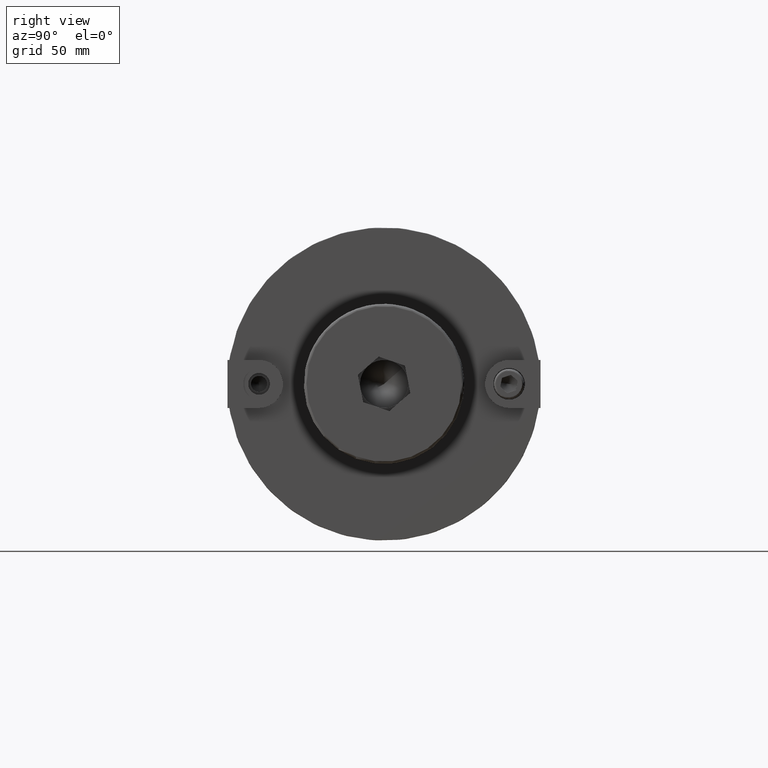
[diagram: clean part render]
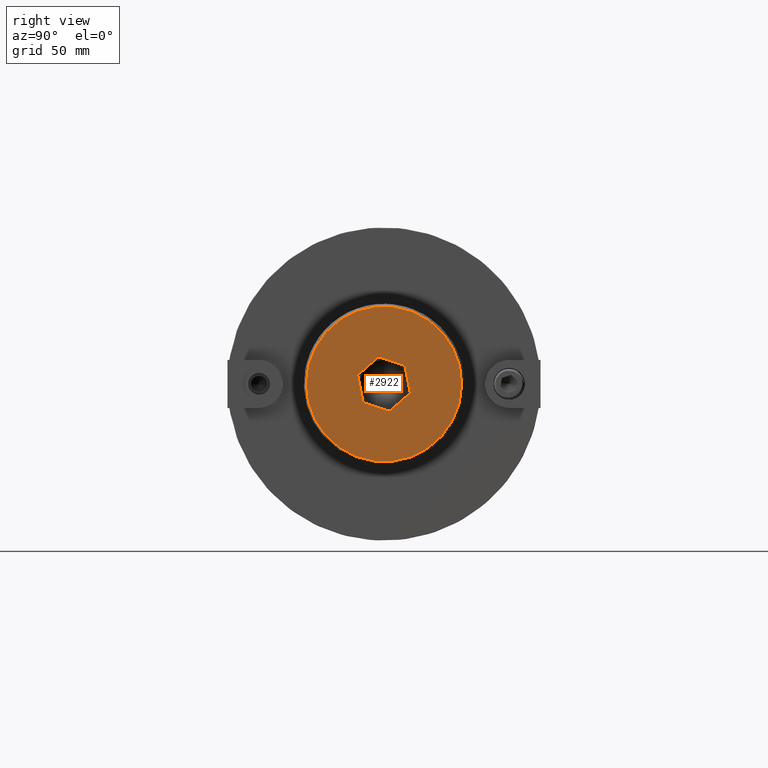
[diagram: same view with one face highlighted and labeled with its STEP entity id]
A machine part, right view. The second image highlights one B-rep face of the part: STEP entity #2922.
In plain terms, the highlighted planar face has unit normal (1, 0, 0).
Its self-contained STEP definition (entity closure, byte-faithful):
#641=FACE_BOUND('',#1098,.T.);
#784=CIRCLE('',#3388,30.75);
#927=FACE_OUTER_BOUND('',#1097,.T.);
#1097=EDGE_LOOP('',(#2705));
#1098=EDGE_LOOP('',(#2706,#2707,#2708,#2709,#2710,#2711));
#1244=LINE('',#5723,#1403);
#1247=LINE('',#5728,#1406);
#1249=LINE('',#5732,#1408);
#1251=LINE('',#5736,#1410);
#1253=LINE('',#5740,#1412);
#1255=LINE('',#5743,#1414);
#1403=VECTOR('',#4120,10.);
#1406=VECTOR('',#4125,10.);
#1408=VECTOR('',#4129,10.);
#1410=VECTOR('',#4133,10.);
#1412=VECTOR('',#4137,10.);
#1414=VECTOR('',#4141,10.);
#1634=VERTEX_POINT('',#5721);
#1635=VERTEX_POINT('',#5722);
#1636=VERTEX_POINT('',#5727);
#1637=VERTEX_POINT('',#5731);
#1638=VERTEX_POINT('',#5735);
#1639=VERTEX_POINT('',#5739);
#1652=VERTEX_POINT('',#5783);
#1974=EDGE_CURVE('',#1634,#1635,#1244,.T.);
#1977=EDGE_CURVE('',#1636,#1634,#1247,.T.);
#1979=EDGE_CURVE('',#1637,#1636,#1249,.T.);
#1981=EDGE_CURVE('',#1638,#1637,#1251,.T.);
#1983=EDGE_CURVE('',#1639,#1638,#1253,.T.);
#1985=EDGE_CURVE('',#1635,#1639,#1255,.T.);
#2005=EDGE_CURVE('',#1652,#1652,#784,.T.);
#2705=ORIENTED_EDGE('',*,*,#2005,.F.);
#2706=ORIENTED_EDGE('',*,*,#1974,.T.);
#2707=ORIENTED_EDGE('',*,*,#1985,.T.);
#2708=ORIENTED_EDGE('',*,*,#1983,.T.);
#2709=ORIENTED_EDGE('',*,*,#1981,.T.);
#2710=ORIENTED_EDGE('',*,*,#1979,.T.);
#2711=ORIENTED_EDGE('',*,*,#1977,.T.);
#2780=PLANE('',#3389);
#2922=ADVANCED_FACE('',(#927,#641),#2780,.T.);
#3388=AXIS2_PLACEMENT_3D('',#5785,#4196,#4197);
#3389=AXIS2_PLACEMENT_3D('',#5786,#4198,#4199);
#4120=DIRECTION('',(0.,-0.866025403784439,-0.5));
#4125=DIRECTION('',(0.,-0.866025403784439,0.5));
#4129=DIRECTION('',(0.,1.00942923169741E-16,1.));
#4133=DIRECTION('',(0.,0.866025403784439,0.5));
#4137=DIRECTION('',(0.,0.866025403784439,-0.5));
#4141=DIRECTION('',(0.,-1.00942923169741E-16,-1.));
#4196=DIRECTION('center_axis',(1.,0.,0.));
#4197=DIRECTION('ref_axis',(0.,-1.,1.83697019872103E-16));
#4198=DIRECTION('center_axis',(-1.,0.,0.));
#4199=DIRECTION('ref_axis',(0.,0.,1.));
#5721=CARTESIAN_POINT('',(0.,-2.46519032881566E-31,10.9985226280624));
#5722=CARTESIAN_POINT('',(0.,-9.52499999999999,5.49926131403118));
#5723=CARTESIAN_POINT('',(0.,9.525,16.4977839420935));
#5727=CARTESIAN_POINT('',(0.,9.52499999999999,5.49926131403118));
#5728=CARTESIAN_POINT('',(0.,19.05,-3.33066907387547E-15));
#5731=CARTESIAN_POINT('',(0.,9.52499999999999,-5.49926131403119));
#5732=CARTESIAN_POINT('',(0.,9.52499999999999,-2.74963065701559));
#5735=CARTESIAN_POINT('',(0.,-2.857076923335E-15,-10.9985226280624));
#5736=CARTESIAN_POINT('',(0.,14.2875,-2.74963065701559));
#5739=CARTESIAN_POINT('',(0.,-9.525,-5.49926131403118));
#5740=CARTESIAN_POINT('',(0.,4.7625,-13.748153285078));
#5743=CARTESIAN_POINT('',(0.,-9.52499999999999,2.74963065701559));
#5783=CARTESIAN_POINT('',(0.,-3.76578890737811E-15,30.75));
#5785=CARTESIAN_POINT('Origin',(0.,0.,0.));
#5786=CARTESIAN_POINT('Origin',(0.,31.75,0.));